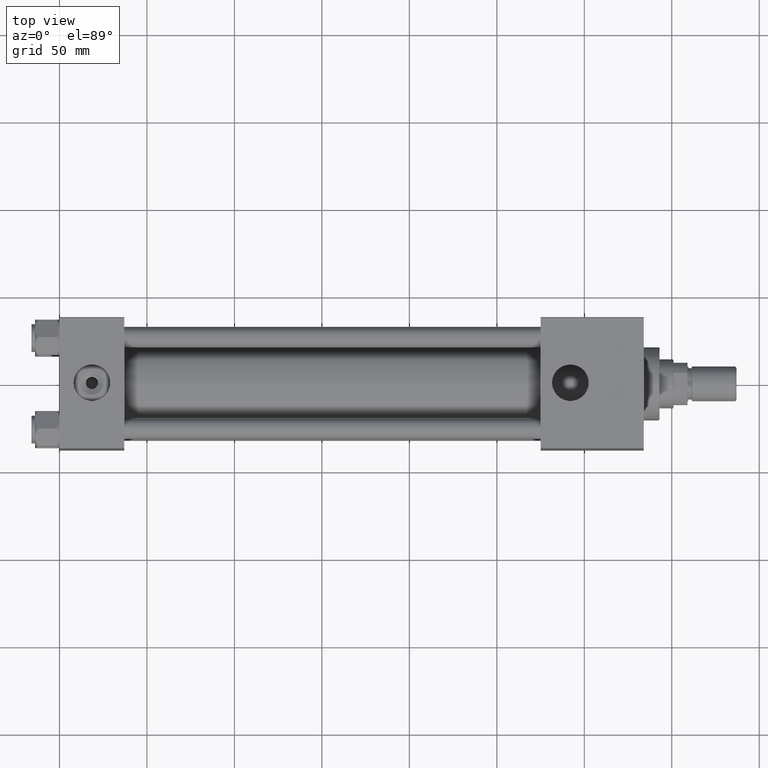
[diagram: clean part render]
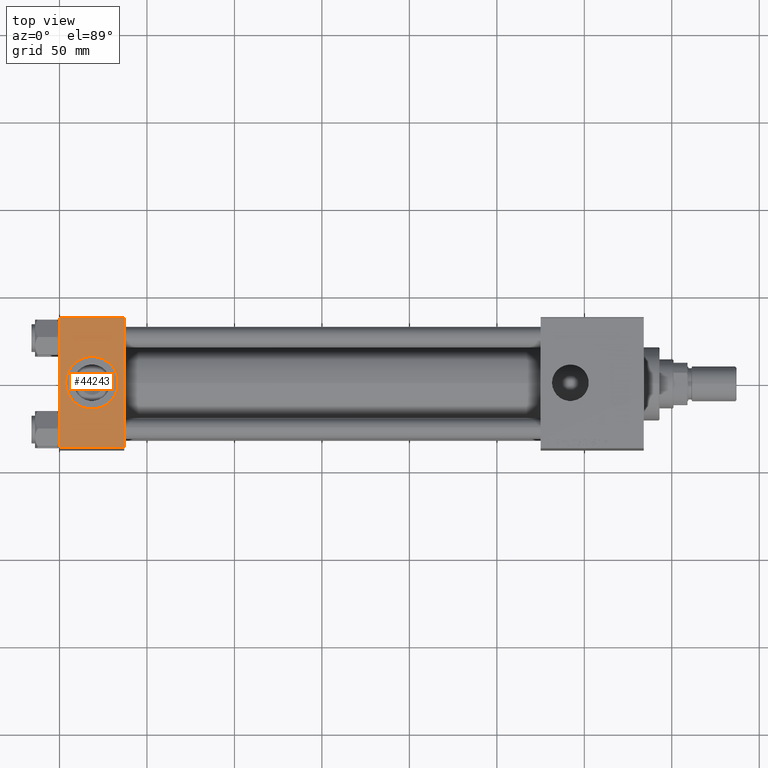
[diagram: same view with one face highlighted and labeled with its STEP entity id]
A machine part, top view. The second image highlights one B-rep face of the part: STEP entity #44243.
In plain terms, the highlighted planar face has unit normal (0, 0, -1).
Its self-contained STEP definition (entity closure, byte-faithful):
#525 = EDGE_CURVE ( 'NONE', #20218, #29640, #21387, .T. ) ;
#1486 = FACE_OUTER_BOUND ( 'NONE', #29428, .T. ) ;
#1628 = DIRECTION ( 'NONE',  ( 0.000000000000000000, 0.000000000000000000, 1.000000000000000000 ) ) ;
#2004 = CARTESIAN_POINT ( 'NONE',  ( 37.00000000000000000, 37.49999999999999289, 37.50000000000000000 ) ) ;
#2482 = EDGE_CURVE ( 'NONE', #7938, #47043, #32279, .T. ) ;
#2969 = DIRECTION ( 'NONE',  ( 0.000000000000000000, -1.000000000000000000, -9.251858538542971581E-17 ) ) ;
#4221 = LINE ( 'NONE', #17010, #42387 ) ;
#4412 = VECTOR ( 'NONE', #2969, 1000.000000000000000 ) ;
#5231 = EDGE_CURVE ( 'NONE', #47043, #41916, #52093, .T. ) ;
#5365 = ORIENTED_EDGE ( 'NONE', *, *, #5231, .T. ) ;
#6270 = DIRECTION ( 'NONE',  ( 0.000000000000000000, 9.251858538542971581E-17, -1.000000000000000000 ) ) ;
#7938 = VERTEX_POINT ( 'NONE', #18961 ) ;
#8749 = EDGE_LOOP ( 'NONE', ( #9970, #16617 ) ) ;
#8964 = CARTESIAN_POINT ( 'NONE',  ( 33.50000000000000000, -5.204170427930421283E-15, 37.50000000000000000 ) ) ;
#9970 = ORIENTED_EDGE ( 'NONE', *, *, #24805, .F. ) ;
#12325 = CIRCLE ( 'NONE', #19121, 15.00000000000000355 ) ;
#12917 = CARTESIAN_POINT ( 'NONE',  ( 3.499999999999997780, -3.367200229209391300E-15, 37.50000000000000000 ) ) ;
#15375 = CARTESIAN_POINT ( 'NONE',  ( 18.50000000000000000, -5.204170427930421283E-15, 37.50000000000000000 ) ) ;
#16512 = VECTOR ( 'NONE', #28848, 1000.000000000000000 ) ;
#16617 = ORIENTED_EDGE ( 'NONE', *, *, #525, .F. ) ;
#17010 = CARTESIAN_POINT ( 'NONE',  ( 37.00000000000000000, 37.49999999999999289, 37.50000000000000000 ) ) ;
#17761 = PLANE ( 'NONE',  #52521 ) ;
#17806 = CARTESIAN_POINT ( 'NONE',  ( 37.00000000000000000, -37.00000000000000711, 37.49999999999999289 ) ) ;
#18321 = EDGE_CURVE ( 'NONE', #21502, #7938, #45343, .T. ) ;
#18961 = CARTESIAN_POINT ( 'NONE',  ( 0.000000000000000000, 36.99999999999999289, 37.50000000000000000 ) ) ;
#19121 = AXIS2_PLACEMENT_3D ( 'NONE', #15375, #22572, #23631 ) ;
#20218 = VERTEX_POINT ( 'NONE', #12917 ) ;
#20224 = DIRECTION ( 'NONE',  ( 0.000000000000000000, -1.000000000000000000, -9.251858538542971581E-17 ) ) ;
#21387 = CIRCLE ( 'NONE', #47725, 15.00000000000000355 ) ;
#21502 = VERTEX_POINT ( 'NONE', #33611 ) ;
#22546 = DIRECTION ( 'NONE',  ( 0.000000000000000000, 1.000000000000000000, 9.251858538542971581E-17 ) ) ;
#22572 = DIRECTION ( 'NONE',  ( 0.000000000000000000, 0.000000000000000000, 1.000000000000000000 ) ) ;
#22660 = ORIENTED_EDGE ( 'NONE', *, *, #2482, .T. ) ;
#23631 = DIRECTION ( 'NONE',  ( 1.000000000000000000, 0.000000000000000000, 0.000000000000000000 ) ) ;
#24805 = EDGE_CURVE ( 'NONE', #29640, #20218, #12325, .T. ) ;
#25656 = DIRECTION ( 'NONE',  ( 1.000000000000000000, 0.000000000000000000, 0.000000000000000000 ) ) ;
#27538 = VECTOR ( 'NONE', #35309, 1000.000000000000000 ) ;
#28848 = DIRECTION ( 'NONE',  ( -1.000000000000000000, 0.000000000000000000, 0.000000000000000000 ) ) ;
#29428 = EDGE_LOOP ( 'NONE', ( #22660, #5365, #39244, #32637 ) ) ;
#29640 = VERTEX_POINT ( 'NONE', #8964 ) ;
#29646 = CARTESIAN_POINT ( 'NONE',  ( 18.50000000000000000, -5.204170427930421283E-15, 37.50000000000000000 ) ) ;
#30427 = CARTESIAN_POINT ( 'NONE',  ( 0.000000000000000000, -37.00000000000000711, 37.49999999999999289 ) ) ;
#32279 = LINE ( 'NONE', #39992, #4412 ) ;
#32637 = ORIENTED_EDGE ( 'NONE', *, *, #18321, .T. ) ;
#33611 = CARTESIAN_POINT ( 'NONE',  ( 37.00000000000000000, 36.99999999999999289, 37.50000000000000000 ) ) ;
#35309 = DIRECTION ( 'NONE',  ( 1.000000000000000000, 0.000000000000000000, 0.000000000000000000 ) ) ;
#38509 = FACE_BOUND ( 'NONE', #8749, .T. ) ;
#39244 = ORIENTED_EDGE ( 'NONE', *, *, #47794, .F. ) ;
#39992 = CARTESIAN_POINT ( 'NONE',  ( 0.000000000000000000, 37.49999999999999289, 37.50000000000000000 ) ) ;
#41609 = CARTESIAN_POINT ( 'NONE',  ( 0.000000000000000000, 36.99999999999999289, 37.50000000000000000 ) ) ;
#41916 = VERTEX_POINT ( 'NONE', #17806 ) ;
#42387 = VECTOR ( 'NONE', #20224, 1000.000000000000000 ) ;
#43834 = CARTESIAN_POINT ( 'NONE',  ( 37.00000000000000000, -37.00000000000000711, 37.49999999999999289 ) ) ;
#44243 = ADVANCED_FACE ( 'NONE', ( #38509, #1486 ), #17761, .F. ) ;
#45343 = LINE ( 'NONE', #41609, #16512 ) ;
#47043 = VERTEX_POINT ( 'NONE', #30427 ) ;
#47725 = AXIS2_PLACEMENT_3D ( 'NONE', #29646, #1628, #25656 ) ;
#47794 = EDGE_CURVE ( 'NONE', #21502, #41916, #4221, .T. ) ;
#52093 = LINE ( 'NONE', #43834, #27538 ) ;
#52521 = AXIS2_PLACEMENT_3D ( 'NONE', #2004, #6270, #22546 ) ;